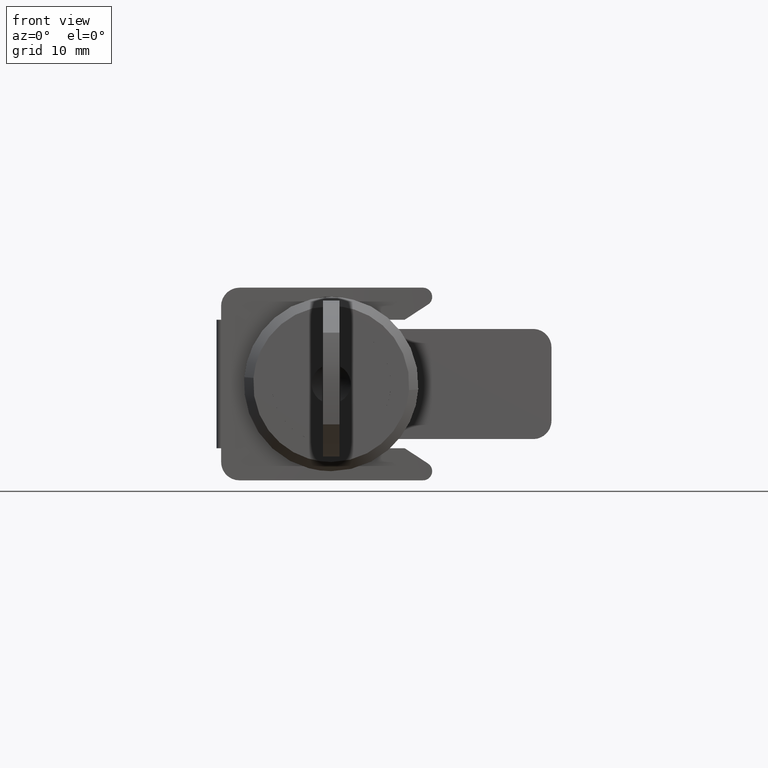
[diagram: clean part render]
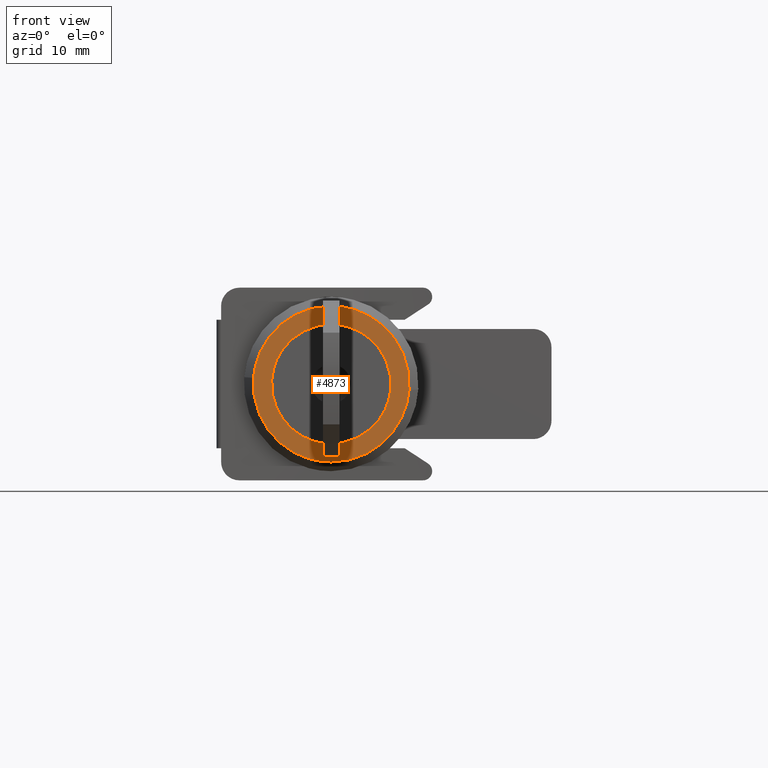
[diagram: same view with one face highlighted and labeled with its STEP entity id]
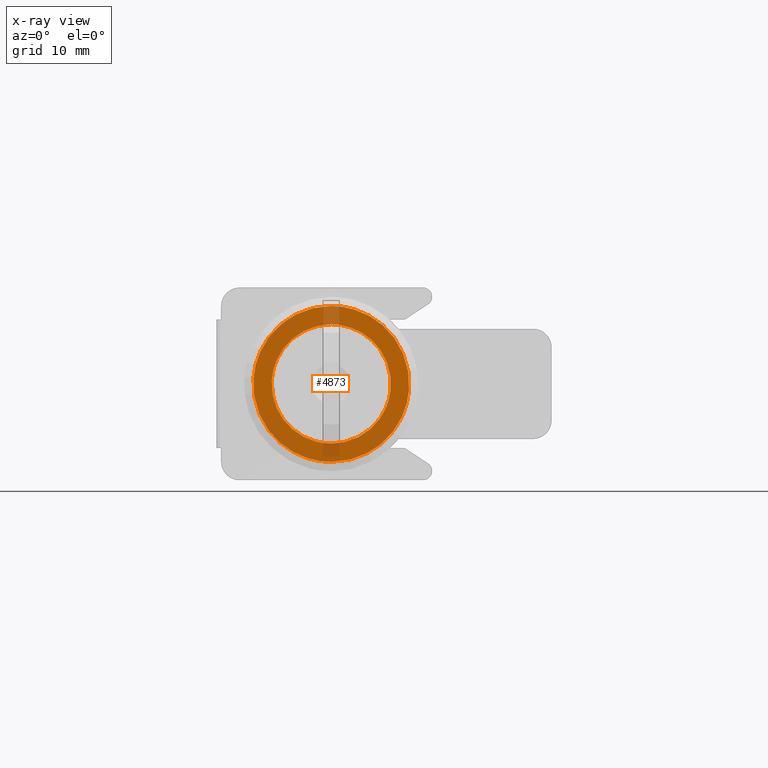
[diagram: x-ray of the same camera — body ghosted, the highlighted face saturated]
A machine part, front view. The second image highlights one B-rep face of the part: STEP entity #4873.
The next image is the same camera in x-ray: the body ghosted, the highlighted face saturated — about 7% of this face is hidden behind the body in this view.
In plain terms, the highlighted face is a freeform B-spline surface patch.
Its self-contained STEP definition (entity closure, byte-faithful):
#3909=CARTESIAN_POINT('',(-2.0,-6.454561921360455,-0.767222525297343));
#3910=VERTEX_POINT('',#3909);
#3916=CARTESIAN_POINT('',(-2.0,0.0,6.500000000000000));
#3917=VERTEX_POINT('',#3916);
#3918=CARTESIAN_POINT('',(-2.000000000000000,-6.454561921360455,-0.767222525297343));
#3919=CARTESIAN_POINT('',(-2.000000000000000,-6.500000000000001,-0.384956777766128));
#3920=CARTESIAN_POINT('',(-2.0,-6.500000000000000,0.0));
#3921=CARTESIAN_POINT('',(-2.0,-6.500000000000000,6.500000000000000));
#3922=CARTESIAN_POINT('',(-2.0,0.0,6.500000000000000));
#3930=(BOUNDED_CURVE()B_SPLINE_CURVE(2,(#3918,#3919,#3920,#3921,#3922),.UNSPECIFIED.,.F.,.U.)B_SPLINE_CURVE_WITH_KNOTS((3,2,3),(0.229562473514156,0.250000000000000,0.500000000000000),.UNSPECIFIED.)CURVE()GEOMETRIC_REPRESENTATION_ITEM()RATIONAL_B_SPLINE_CURVE((0.956026754184969,0.976055948331904,1.0,0.707106781186547,1.0))REPRESENTATION_ITEM(''));
#3931=EDGE_CURVE('',#3910,#3917,#3930,.T.);
#3933=CARTESIAN_POINT('',(-2.0,6.487876189738861,0.396815507030093));
#3934=VERTEX_POINT('',#3933);
#3935=CARTESIAN_POINT('',(-2.0,0.0,6.500000000000000));
#3936=CARTESIAN_POINT('',(-2.0,6.114589434785910,6.500000000000002));
#3937=CARTESIAN_POINT('',(-2.000000000000000,6.487876189738862,0.396815507030093));
#3945=(BOUNDED_CURVE()B_SPLINE_CURVE(2,(#3935,#3936,#3937),.UNSPECIFIED.,.F.,.U.)B_SPLINE_CURVE_WITH_KNOTS((3,3),(0.500000000000000,0.739332962239120),.UNSPECIFIED.)CURVE()GEOMETRIC_REPRESENTATION_ITEM()RATIONAL_B_SPLINE_CURVE((1.0,0.719603993286502,0.976072041667098))REPRESENTATION_ITEM(''));
#3946=EDGE_CURVE('',#3917,#3934,#3945,.T.);
#4020=CARTESIAN_POINT('',(-2.0,0.0,-6.500000000000000));
#4021=VERTEX_POINT('',#4020);
#4022=CARTESIAN_POINT('',(-2.000000000000000,6.487876189738861,0.396815507030093));
#4023=CARTESIAN_POINT('',(-2.000000000000000,6.500000000000001,0.198592961494501));
#4024=CARTESIAN_POINT('',(-2.0,6.500000000000000,0.0));
#4025=CARTESIAN_POINT('',(-2.0,6.500000000000000,-6.500000000000000));
#4026=CARTESIAN_POINT('',(-2.0,0.0,-6.500000000000000));
#4034=(BOUNDED_CURVE()B_SPLINE_CURVE(2,(#4022,#4023,#4024,#4025,#4026),.UNSPECIFIED.,.F.,.U.)B_SPLINE_CURVE_WITH_KNOTS((3,2,3),(0.739332962239121,0.750000000000000,1.0),.UNSPECIFIED.)CURVE()GEOMETRIC_REPRESENTATION_ITEM()RATIONAL_B_SPLINE_CURVE((0.976072041667100,0.987502787900046,1.0,0.707106781186547,1.0))REPRESENTATION_ITEM(''));
#4035=EDGE_CURVE('',#3934,#4021,#4034,.T.);
#4037=CARTESIAN_POINT('',(-2.0,0.0,-6.500000000000000));
#4038=CARTESIAN_POINT('',(-2.000000000000000,-5.773134418632709,-6.499999999999999));
#4039=CARTESIAN_POINT('',(-2.000000000000000,-6.454561921360455,-0.767222525297343));
#4047=(BOUNDED_CURVE()B_SPLINE_CURVE(2,(#4037,#4038,#4039),.UNSPECIFIED.,.F.,.U.)B_SPLINE_CURVE_WITH_KNOTS((3,3),(0.0,0.229562473514157),.UNSPECIFIED.)CURVE()GEOMETRIC_REPRESENTATION_ITEM()RATIONAL_B_SPLINE_CURVE((1.0,0.731050832854643,0.956026754184970))REPRESENTATION_ITEM(''));
#4048=EDGE_CURVE('',#4021,#3910,#4047,.T.);
#4274=CARTESIAN_POINT('',(-1.999999999999421,8.473797336731703,0.666902313691147));
#4275=VERTEX_POINT('',#4274);
#4281=CARTESIAN_POINT('',(-2.0,0.0,8.499999999999890));
#4282=VERTEX_POINT('',#4281);
#4283=CARTESIAN_POINT('',(-2.0,0.0,8.499999999999890));
#4284=CARTESIAN_POINT('',(-2.000000000000000,7.857319179086429,8.499999999999890));
#4285=CARTESIAN_POINT('',(-1.999999999999422,8.473797336731703,0.666902313691147));
#4293=(BOUNDED_CURVE()B_SPLINE_CURVE(2,(#4283,#4284,#4285),.UNSPECIFIED.,.F.,.U.)B_SPLINE_CURVE_WITH_KNOTS((3,3),(0.0,0.236331300632588),.UNSPECIFIED.)CURVE()GEOMETRIC_REPRESENTATION_ITEM()RATIONAL_B_SPLINE_CURVE((1.0,0.723120658605406,0.969723356171442))REPRESENTATION_ITEM(''));
#4294=EDGE_CURVE('',#4282,#4275,#4293,.T.);
#4296=CARTESIAN_POINT('',(-1.999999999999421,-8.473797336731703,-0.666902313691145));
#4297=VERTEX_POINT('',#4296);
#4298=CARTESIAN_POINT('',(-1.999999999999422,-8.473797336731703,-0.666902313691145));
#4299=CARTESIAN_POINT('',(-2.0,-8.499999999999890,-0.333965909569632));
#4300=CARTESIAN_POINT('',(-2.0,-8.499999999999890,0.0));
#4301=CARTESIAN_POINT('',(-2.0,-8.499999999999892,8.499999999999892));
#4302=CARTESIAN_POINT('',(-2.0,0.0,8.499999999999890));
#4310=(BOUNDED_CURVE()B_SPLINE_CURVE(2,(#4298,#4299,#4300,#4301,#4302),.UNSPECIFIED.,.F.,.U.)B_SPLINE_CURVE_WITH_KNOTS((3,2,3),(0.736331300632588,0.750000000000000,1.0),.UNSPECIFIED.)CURVE()GEOMETRIC_REPRESENTATION_ITEM()RATIONAL_B_SPLINE_CURVE((0.969723356171442,0.983986122581141,1.0,0.707106781186547,1.0))REPRESENTATION_ITEM(''));
#4311=EDGE_CURVE('',#4297,#4282,#4310,.T.);
#4348=CARTESIAN_POINT('',(-2.0,0.0,-8.499999999999890));
#4349=VERTEX_POINT('',#4348);
#4350=CARTESIAN_POINT('',(-2.0,0.0,-8.499999999999890));
#4351=CARTESIAN_POINT('',(-2.000000000000000,-7.857319179086455,-8.499999999999890));
#4352=CARTESIAN_POINT('',(-1.999999999999421,-8.473797336731703,-0.666902313691145));
#4360=(BOUNDED_CURVE()B_SPLINE_CURVE(2,(#4350,#4351,#4352),.UNSPECIFIED.,.F.,.U.)B_SPLINE_CURVE_WITH_KNOTS((3,3),(0.500000000000000,0.736331300632588),.UNSPECIFIED.)CURVE()GEOMETRIC_REPRESENTATION_ITEM()RATIONAL_B_SPLINE_CURVE((1.0,0.723120658605406,0.969723356171443))REPRESENTATION_ITEM(''));
#4361=EDGE_CURVE('',#4349,#4297,#4360,.T.);
#4363=CARTESIAN_POINT('',(-1.999999999999421,8.473797336731703,0.666902313691147));
#4364=CARTESIAN_POINT('',(-2.000000000000000,8.499999999999890,0.333965909569634));
#4365=CARTESIAN_POINT('',(-2.0,8.499999999999890,0.0));
#4366=CARTESIAN_POINT('',(-2.0,8.499999999999892,-8.499999999999892));
#4367=CARTESIAN_POINT('',(-2.0,0.0,-8.499999999999890));
#4375=(BOUNDED_CURVE()B_SPLINE_CURVE(2,(#4363,#4364,#4365,#4366,#4367),.UNSPECIFIED.,.F.,.U.)B_SPLINE_CURVE_WITH_KNOTS((3,2,3),(0.236331300632588,0.250000000000000,0.500000000000000),.UNSPECIFIED.)CURVE()GEOMETRIC_REPRESENTATION_ITEM()RATIONAL_B_SPLINE_CURVE((0.969723356171442,0.983986122581141,1.0,0.707106781186547,1.0))REPRESENTATION_ITEM(''));
#4376=EDGE_CURVE('',#4275,#4349,#4375,.T.);
#4856=CARTESIAN_POINT('',(-2.0,-9.346555876929616,-9.349149967050579));
#4857=CARTESIAN_POINT('',(-2.0,-9.346555876929616,9.349150423026114));
#4858=CARTESIAN_POINT('',(-2.0,9.346555876929614,-9.349149967050579));
#4859=CARTESIAN_POINT('',(-2.0,9.346555876929614,9.349150423026114));
#4860=B_SPLINE_SURFACE_WITH_KNOTS('',1,1,((#4856,#4858),(#4857,#4859)),.UNSPECIFIED.,.F.,.F.,.U.,(2,2),(2,2),(0.0,18.698300390076689),(0.0,18.693111753859231),.UNSPECIFIED.);
#4861=ORIENTED_EDGE('',*,*,#4294,.T.);
#4862=ORIENTED_EDGE('',*,*,#4376,.T.);
#4863=ORIENTED_EDGE('',*,*,#4361,.T.);
#4864=ORIENTED_EDGE('',*,*,#4311,.T.);
#4865=EDGE_LOOP('',(#4861,#4862,#4863,#4864));
#4866=FACE_OUTER_BOUND('',#4865,.T.);
#4867=ORIENTED_EDGE('',*,*,#3946,.F.);
#4868=ORIENTED_EDGE('',*,*,#3931,.F.);
#4869=ORIENTED_EDGE('',*,*,#4048,.F.);
#4870=ORIENTED_EDGE('',*,*,#4035,.F.);
#4871=EDGE_LOOP('',(#4867,#4868,#4869,#4870));
#4872=FACE_BOUND('',#4871,.T.);
#4873=ADVANCED_FACE('',(#4866,#4872),#4860,.T.);